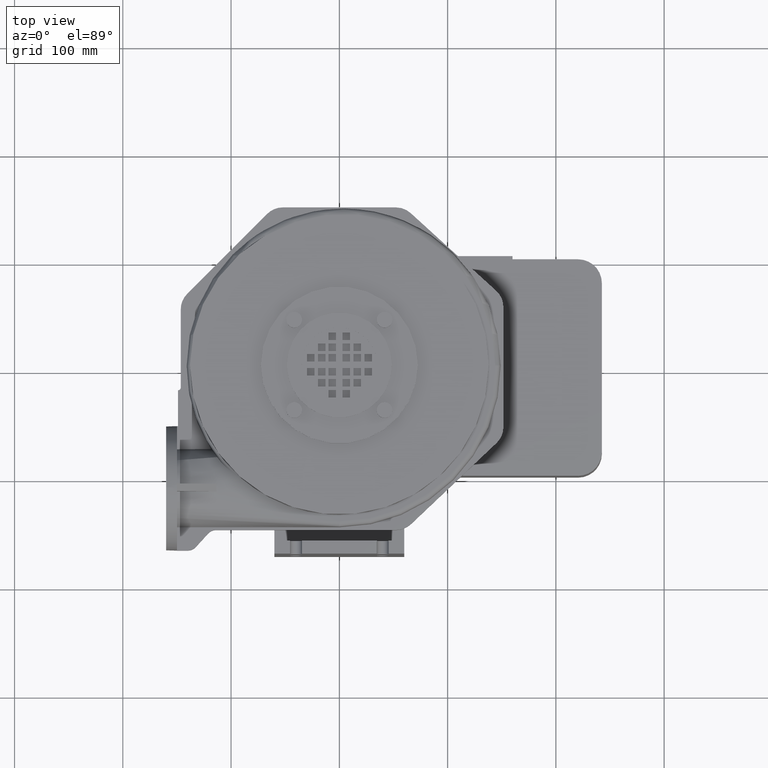
[diagram: clean part render]
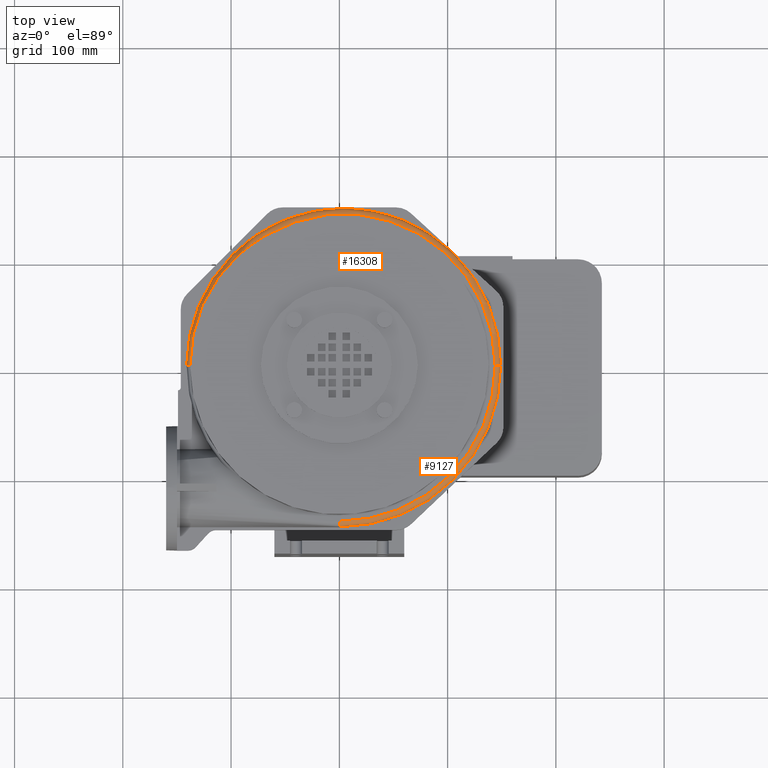
[diagram: same view with one multi-face feature highlighted, each face labeled with its STEP entity id]
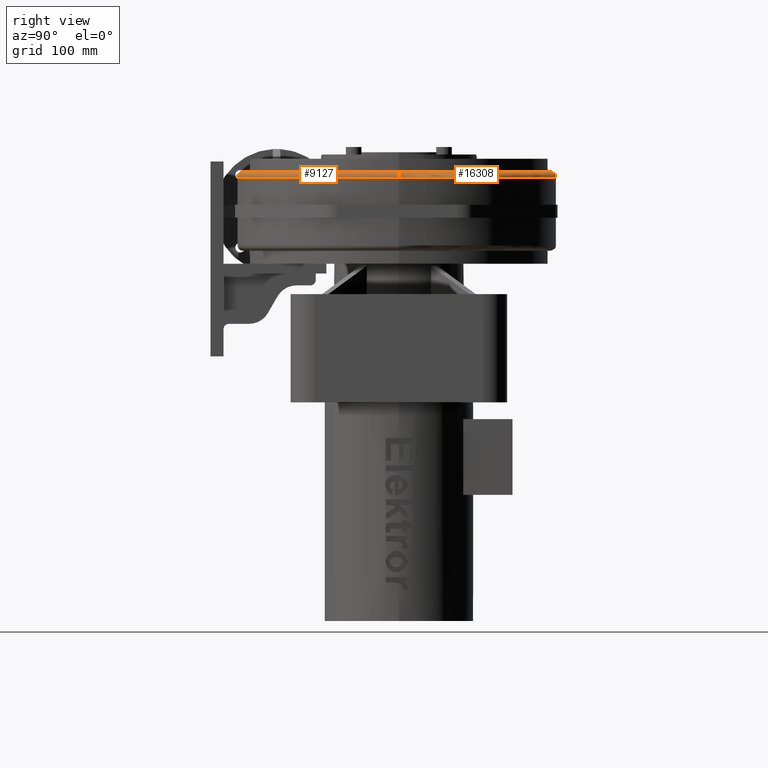
[diagram: same view with one multi-face feature highlighted, each face labeled with its STEP entity id]
A machine part, top view. The highlighted faces form ONE feature: a constant-radius fillet chain: 2 tangent blend faces with common blend radius 5 mm. The faces share edges in the B-rep.
A second angle (right view) of the same feature is appended — it is thin or edge-on in the first view.
Their STEP definitions:
[1] entity #9127 (Torus):
#9059=CARTESIAN_POINT('',(0.0,-149.0,31.500000000000004));
#9060=VERTEX_POINT('',#9059);
#9061=CARTESIAN_POINT('',(149.000000000000200,0.0,31.500000000000004));
#9062=VERTEX_POINT('',#9061);
#9063=CARTESIAN_POINT('',(0.0,0.0,31.500000000000004));
#9064=DIRECTION('',(0.0,0.0,1.000000000000000));
#9065=DIRECTION('',(0.707106781186547,-0.707106781186547,0.0));
#9066=AXIS2_PLACEMENT_3D('',#9063,#9064,#9065);
#9067=CIRCLE('',#9066,148.999999999999970);
#9068=EDGE_CURVE('',#9060,#9062,#9067,.T.);
#9094=CARTESIAN_POINT('',(0.0,0.0,31.500000000000004));
#9095=DIRECTION('',(0.0,0.0,-1.0));
#9096=DIRECTION('',(-1.0,0.0,0.0));
#9097=AXIS2_PLACEMENT_3D('',#9094,#9095,#9096);
#9098=TOROIDAL_SURFACE('',#9097,144.0,5.0);
#9099=CARTESIAN_POINT('',(144.0,0.0,36.500000000000000));
#9100=VERTEX_POINT('',#9099);
#9101=CARTESIAN_POINT('',(0.0,-144.0,36.500000000000000));
#9102=VERTEX_POINT('',#9101);
#9103=CARTESIAN_POINT('',(0.0,0.0,36.500000000000000));
#9104=DIRECTION('',(0.0,0.0,-1.0));
#9105=DIRECTION('',(0.707106781186547,-0.707106781186548,0.0));
#9106=AXIS2_PLACEMENT_3D('',#9103,#9104,#9105);
#9107=CIRCLE('',#9106,144.0);
#9108=EDGE_CURVE('',#9100,#9102,#9107,.T.);
#9109=ORIENTED_EDGE('',*,*,#9108,.T.);
#9110=CARTESIAN_POINT('',(0.0,-144.0,31.500000000000004));
#9111=DIRECTION('',(1.0,0.0,0.0));
#9112=DIRECTION('',(0.0,-1.0,0.0));
#9113=AXIS2_PLACEMENT_3D('',#9110,#9111,#9112);
#9114=CIRCLE('',#9113,5.0);
#9115=EDGE_CURVE('',#9102,#9060,#9114,.T.);
#9116=ORIENTED_EDGE('',*,*,#9115,.T.);
#9117=ORIENTED_EDGE('',*,*,#9068,.T.);
#9118=CARTESIAN_POINT('',(144.0,0.0,31.500000000000004));
#9119=DIRECTION('',(0.0,-1.0,0.0));
#9120=DIRECTION('',(1.0,0.0,0.0));
#9121=AXIS2_PLACEMENT_3D('',#9118,#9119,#9120);
#9122=CIRCLE('',#9121,5.000000000000195);
#9123=EDGE_CURVE('',#9062,#9100,#9122,.T.);
#9124=ORIENTED_EDGE('',*,*,#9123,.T.);
#9125=EDGE_LOOP('',(#9109,#9116,#9117,#9124));
#9126=FACE_OUTER_BOUND('',#9125,.T.);
#9127=ADVANCED_FACE('',(#9126),#9098,.T.);
[2] entity #16308 (Torus):
#918=CARTESIAN_POINT('',(-138.0,-8.363091E-015,36.082575694955793));
#919=VERTEX_POINT('',#918);
#9061=CARTESIAN_POINT('',(149.000000000000200,0.0,31.500000000000004));
#9062=VERTEX_POINT('',#9061);
#9099=CARTESIAN_POINT('',(144.0,0.0,36.500000000000000));
#9100=VERTEX_POINT('',#9099);
#9118=CARTESIAN_POINT('',(144.0,0.0,31.500000000000004));
#9119=DIRECTION('',(0.0,-1.0,0.0));
#9120=DIRECTION('',(1.0,0.0,0.0));
#9121=AXIS2_PLACEMENT_3D('',#9118,#9119,#9120);
#9122=CIRCLE('',#9121,5.000000000000195);
#9123=EDGE_CURVE('',#9062,#9100,#9122,.T.);
#9133=CARTESIAN_POINT('',(-67.499999999998906,120.365069683858620,36.500000000000057));
#9134=VERTEX_POINT('',#9133);
#9150=CARTESIAN_POINT('',(4.0,0.0,36.500000000000000));
#9151=DIRECTION('',(0.0,0.0,-1.0));
#9152=DIRECTION('',(0.0,1.0,0.0));
#9153=AXIS2_PLACEMENT_3D('',#9150,#9151,#9152);
#9154=CIRCLE('',#9153,139.999999999999970);
#9155=EDGE_CURVE('',#9134,#9100,#9154,.T.);
#9191=CARTESIAN_POINT('',(-138.0,-8.363091E-015,36.082575694955793));
#9192=CARTESIAN_POINT('',(-138.0,6.964957896546751,36.082575694955793));
#9193=CARTESIAN_POINT('',(-137.472708149455540,13.925424552321765,36.089141722754349));
#9194=CARTESIAN_POINT('',(-134.234821268960530,35.139758051218628,36.127912349636738));
#9195=CARTESIAN_POINT('',(-129.808816994470500,49.025061222069994,36.180543624849662));
#9196=CARTESIAN_POINT('',(-115.210610577277990,78.073435608740212,36.318434163213801));
#9197=CARTESIAN_POINT('',(-104.038152010841660,92.439232778519852,36.406088520468245));
#9198=CARTESIAN_POINT('',(-83.329720445598682,110.400441107259370,36.483707548364144));
#9199=CARTESIAN_POINT('',(-75.647475635341934,115.796014834057810,36.500000000000050));
#9200=CARTESIAN_POINT('',(-67.499999999998906,120.365069683858620,36.500000000000057));
#9201=B_SPLINE_CURVE_WITH_KNOTS('',3,(#9191,#9192,#9193,#9194,#9195,#9196,#9197,#9198,#9199,#9200),.UNSPECIFIED.,.F.,.U.,(4,2,2,2,4),(-8.756753013427833,-8.229413649537134,-7.134491441095791,-5.771788730580052,-5.062242232892170),.UNSPECIFIED.);
#9202=EDGE_CURVE('',#919,#9134,#9201,.T.);
#11440=CARTESIAN_POINT('',(-140.999999999999940,0.0,31.500000000000004));
#11441=VERTEX_POINT('',#11440);
#11448=CARTESIAN_POINT('',(4.0,0.0,31.500000000000004));
#11449=DIRECTION('',(0.0,0.0,1.0));
#11450=DIRECTION('',(0.0,1.0,0.0));
#11451=AXIS2_PLACEMENT_3D('',#11448,#11449,#11450);
#11452=CIRCLE('',#11451,144.999999999999970);
#11453=EDGE_CURVE('',#9062,#11441,#11452,.T.);
#16284=CARTESIAN_POINT('',(-135.999999999999970,-1.393848E-014,31.500000000000004));
#16285=DIRECTION('',(0.0,1.0,0.0));
#16286=DIRECTION('',(-1.0,0.0,0.0));
#16287=AXIS2_PLACEMENT_3D('',#16284,#16285,#16286);
#16288=CIRCLE('',#16287,4.999999999999965);
#16289=EDGE_CURVE('',#11441,#919,#16288,.T.);
#16296=CARTESIAN_POINT('',(4.0,0.0,31.500000000000004));
#16297=DIRECTION('',(0.0,0.0,-1.0));
#16298=DIRECTION('',(-1.0,0.0,0.0));
#16299=AXIS2_PLACEMENT_3D('',#16296,#16297,#16298);
#16300=TOROIDAL_SURFACE('',#16299,139.999999999999970,5.0);
#16301=ORIENTED_EDGE('',*,*,#11453,.T.);
#16302=ORIENTED_EDGE('',*,*,#16289,.T.);
#16303=ORIENTED_EDGE('',*,*,#9202,.T.);
#16304=ORIENTED_EDGE('',*,*,#9155,.T.);
#16305=ORIENTED_EDGE('',*,*,#9123,.F.);
#16306=EDGE_LOOP('',(#16301,#16302,#16303,#16304,#16305));
#16307=FACE_OUTER_BOUND('',#16306,.T.);
#16308=ADVANCED_FACE('',(#16307),#16300,.T.);